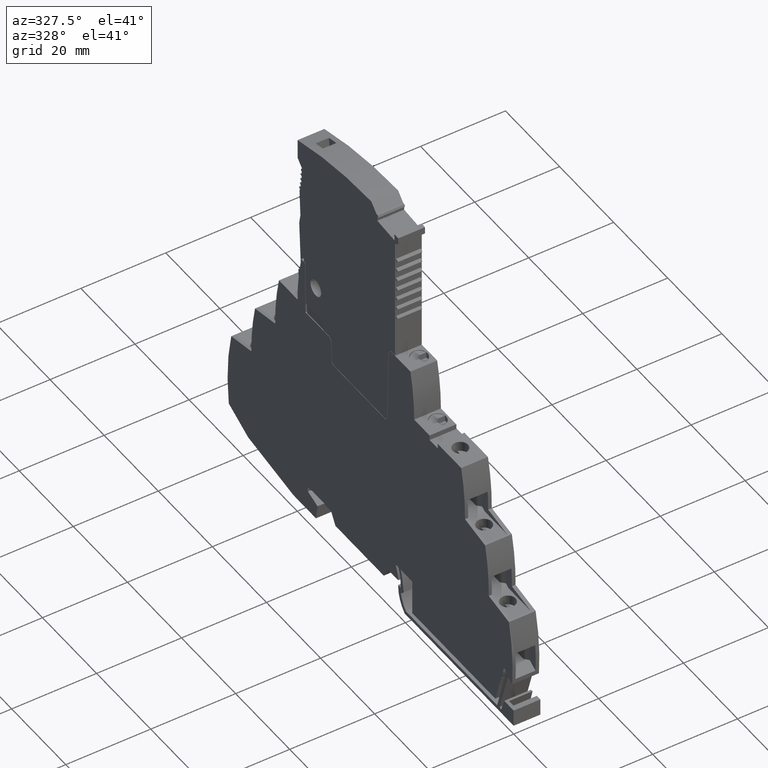
[diagram: clean part render]
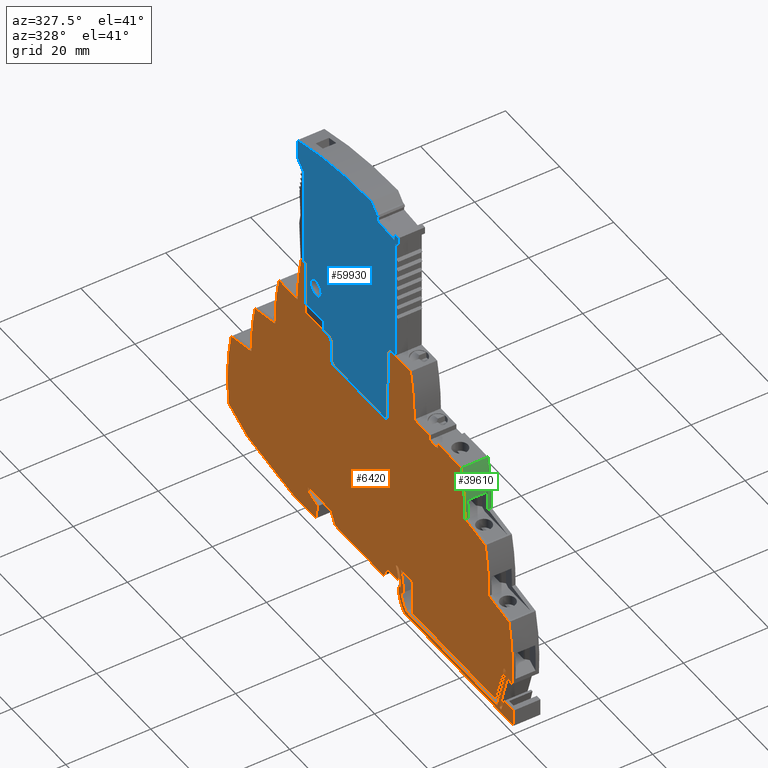
[diagram: same view with three faces highlighted in distinct colors, each labeled with its STEP entity id]
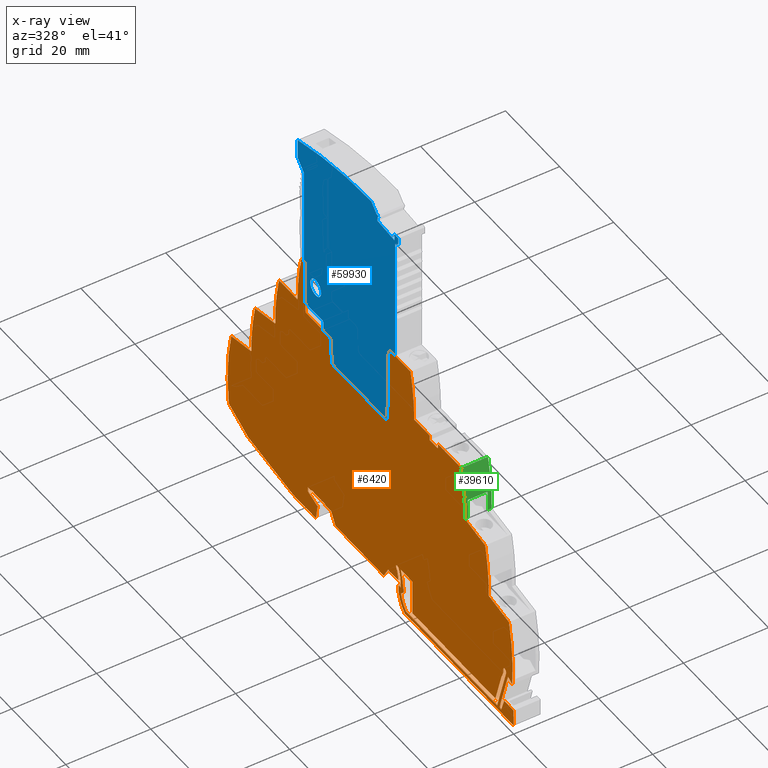
[diagram: x-ray of the same camera — body ghosted, the three highlighted faces saturated]
A machine part, auxiliary view with three faces highlighted in distinct colors.
The next image is the same camera in x-ray (body ghosted, the three faces saturated) — at least one of them is partly hidden behind the body in this view.
Their STEP definitions:

[orange] entity #6420 — the highlighted planar face has unit normal (-1, 0, 0).
#10=CARTESIAN_POINT('',(-55.9378215936621,-6.54999889871898,
-7.22808124464791E-9));
#20=DIRECTION('',(4.25831746991807E-18,1.10352358519E-9,-1.));
#30=DIRECTION('',(0.207911690818067,-0.97814760073374,
-1.07940894632134E-9));
#40=AXIS2_PLACEMENT_3D('',#10,#20,#30);
#50=PLANE('',#40);
#60=CARTESIAN_POINT('',(-70.7789796529141,0.,-3.04014135309915E-15));
#70=DIRECTION('',(0.292371848286536,-0.956304712071166,
-1.05530484351135E-9));
#80=VECTOR('',#70,1.);
#90=LINE('',#60,#80);
#100=CARTESIAN_POINT('',(-71.5838813602363,2.63271344343671,
2.90525844541479E-9));
#110=VERTEX_POINT('',#100);
#120=CARTESIAN_POINT('',(-69.3038181375094,-4.82503331464723,
-5.32454129952403E-9));
#130=VERTEX_POINT('',#120);
#140=EDGE_CURVE('',#110,#130,#90,.T.);
#150=ORIENTED_EDGE('',*,*,#140,.F.);
#160=CARTESIAN_POINT('',(0.,-4.82502979804794,-5.32453692013243E-9));
#170=DIRECTION('',(0.999999999999999,5.07417828865542E-8,
6.02530765892814E-17));
#180=VECTOR('',#170,1.);
#190=LINE('',#160,#180);
#200=CARTESIAN_POINT('',(-38.6044124408871,-4.82503175690464,
-5.32453924616684E-9));
#210=VERTEX_POINT('',#200);
#220=EDGE_CURVE('',#130,#210,#190,.T.);
#230=ORIENTED_EDGE('',*,*,#220,.F.);
#240=CARTESIAN_POINT('',(-38.6044126857179,0.,-2.90313183249569E-15));
#250=DIRECTION('',(-5.07417828587986E-8,0.999999999999999,
1.10352358519E-9));
#260=VECTOR('',#250,1.);
#270=LINE('',#240,#260);
#280=CARTESIAN_POINT('',(-38.6044128605219,3.44497207401861,
3.80160503086861E-9));
#290=VERTEX_POINT('',#280);
#300=EDGE_CURVE('',#210,#290,#270,.T.);
#310=ORIENTED_EDGE('',*,*,#300,.F.);
#320=CARTESIAN_POINT('',(0.,3.44497594927683,3.8016094716973E-9));
#330=DIRECTION('',(0.999999999999995,1.00383815315741E-7,
1.15034214460182E-16));
#340=VECTOR('',#330,1.);
#350=LINE('',#320,#340);
#360=CARTESIAN_POINT('',(-35.1751515428834,3.44497241826091,
3.80160542535138E-9));
#370=VERTEX_POINT('',#360);
#380=EDGE_CURVE('',#290,#370,#350,.T.);
#390=ORIENTED_EDGE('',*,*,#380,.F.);
#400=CARTESIAN_POINT('',(-35.0441483033822,3.29384945097829,
3.63483766724859E-9));
#410=DIRECTION('',(-1.27233392943768E-9,0.,1.));
#420=DIRECTION('',(-0.999999999999995,9.92840029829126E-8,
-1.27233392943767E-9));
#430=AXIS2_PLACEMENT_3D('',#400,#410,#420);
#440=CIRCLE('',#430,0.2);
#450=CARTESIAN_POINT('',(-35.0441483234594,3.49384945097829,
3.85554238428696E-9));
#460=VERTEX_POINT('',#450);
#470=EDGE_CURVE('',#460,#370,#440,.T.);
#480=ORIENTED_EDGE('',*,*,#470,.T.);
#490=CARTESIAN_POINT('',(0.,3.49385296884361,3.85554641556304E-9));
#500=DIRECTION('',(0.999999999999995,1.00383815482275E-7,
1.15034214460182E-16));
#510=VECTOR('',#500,1.);
#520=LINE('',#490,#510);
#530=CARTESIAN_POINT('',(-34.3420132462628,3.49384952146129,
3.85554246505652E-9));
#540=VERTEX_POINT('',#530);
#550=EDGE_CURVE('',#460,#540,#520,.T.);
#560=ORIENTED_EDGE('',*,*,#550,.F.);
#570=CARTESIAN_POINT('',(-5.80807247377794,-5.099998510261,
-5.62797140398149E-9));
#580=DIRECTION('',(-1.27233392943768E-9,0.,1.));
#590=DIRECTION('',(-0.999999999999995,9.92840029829126E-8,
-1.27233392943767E-9));
#600=AXIS2_PLACEMENT_3D('',#570,#580,#590);
#610=CIRCLE('',#600,29.8);
#620=CARTESIAN_POINT('',(-35.4168709723662,-1.72967931617702,
-1.90874398773151E-9));
#630=VERTEX_POINT('',#620);
#640=EDGE_CURVE('',#540,#630,#610,.T.);
#650=ORIENTED_EDGE('',*,*,#640,.F.);
#660=CARTESIAN_POINT('',(0.,-37.1465466943133,-4.09920931242784E-8));
#670=DIRECTION('',(0.707106817066403,-0.707106745306691,
-7.80308984094091E-10));
#680=VECTOR('',#670,1.);
#690=LINE('',#660,#680);
#700=CARTESIAN_POINT('',(-34.35225548262,-2.79429469788224,
-3.08357219077607E-9));
#710=VERTEX_POINT('',#700);
#720=EDGE_CURVE('',#630,#710,#690,.T.);
#730=ORIENTED_EDGE('',*,*,#720,.F.);
#740=CARTESIAN_POINT('',(-42.5080727122643,-0.400000372484449,
-4.41412764876227E-10));
#750=DIRECTION('',(-1.27233392943768E-9,0.,1.));
#760=DIRECTION('',(-0.999999999999995,9.92840029829126E-8,
-1.27233392943767E-9));
#770=AXIS2_PLACEMENT_3D('',#740,#750,#760);
#780=CIRCLE('',#770,8.5);
#790=CARTESIAN_POINT('',(-36.2025221235264,-6.10000315957713,
-6.73150024923088E-9));
#800=VERTEX_POINT('',#790);
#810=EDGE_CURVE('',#800,#710,#780,.T.);
#820=ORIENTED_EDGE('',*,*,#810,.T.);
#830=CARTESIAN_POINT('',(0.,-6.10000132259661,-6.73149806791754E-9));
#840=DIRECTION('',(-0.999999999999999,-5.07417829143097E-8,
-6.02530765892814E-17));
#850=VECTOR('',#840,1.);
#860=LINE('',#830,#850);
#870=CARTESIAN_POINT('',(-69.9597118122115,-6.10000487247712,
-6.73150228320541E-9));
#880=VERTEX_POINT('',#870);
#890=EDGE_CURVE('',#800,#880,#860,.T.);
#900=ORIENTED_EDGE('',*,*,#890,.F.);
#910=CARTESIAN_POINT('',(-71.8246714619477,0.,-3.04459424079771E-15));
#920=DIRECTION('',(-0.292371848547817,0.956304711991284,
1.05530481575578E-9));
#930=VECTOR('',#920,1.);
#940=LINE('',#910,#930);
#950=CARTESIAN_POINT('',(-73.2832766618968,4.77088007130135,
4.86243076617784E-9));
#960=VERTEX_POINT('',#950);
#970=EDGE_CURVE('',#880,#960,#940,.T.);
#980=ORIENTED_EDGE('',*,*,#970,.F.);
#990=CARTESIAN_POINT('',(-72.8529395415008,4.90244740314792,
5.40996328555426E-9));
#1000=DIRECTION('',(-1.27233392943768E-9,0.,1.));
#1010=DIRECTION('',(-0.999999999999995,9.92840029829126E-8,
-1.27233392943767E-9));
#1020=AXIS2_PLACEMENT_3D('',#990,#1000,#1010);
#1030=CIRCLE('',#1020,0.45);
#1040=CARTESIAN_POINT('',(-73.2033944620038,5.18472625232936,
4.9619915880387E-9));
#1050=VERTEX_POINT('',#1040);
#1060=EDGE_CURVE('',#1050,#960,#1030,.T.);
#1070=ORIENTED_EDGE('',*,*,#1060,.T.);
#1080=CARTESIAN_POINT('',(-72.7212095290604,5.05244741637147,
5.57549183848621E-9));
#1090=DIRECTION('',(-1.27233392943768E-9,0.,1.));
#1100=DIRECTION('',(-0.999999999999995,9.92840029829126E-8,
-1.27233392943767E-9));
#1110=AXIS2_PLACEMENT_3D('',#1080,#1090,#1100);
#1120=CIRCLE('',#1110,0.5);
#1130=CARTESIAN_POINT('',(-72.2212095290604,5.0524474665635,
5.57549189600346E-9));
#1140=VERTEX_POINT('',#1130);
#1150=EDGE_CURVE('',#1140,#1050,#1120,.T.);
#1160=ORIENTED_EDGE('',*,*,#1150,.T.);
#1170=CARTESIAN_POINT('',(-72.2212090218766,0.,-3.04628282361663E-15));
#1180=DIRECTION('',(1.00383786616476E-7,-0.999999999999995,
-1.10352358518999E-9));
#1190=VECTOR('',#1180,1.);
#1200=LINE('',#1170,#1190);
#1210=CARTESIAN_POINT('',(-72.2212094439175,4.20427326492571,
4.63951166014647E-9));
#1220=VERTEX_POINT('',#1210);
#1230=EDGE_CURVE('',#1140,#1220,#1200,.T.);
#1240=ORIENTED_EDGE('',*,*,#1230,.F.);
#1250=CARTESIAN_POINT('',(-70.9358334221053,0.,-3.04080928624472E-15));
#1260=DIRECTION('',(0.292371848563715,-0.956304711986423,
-1.05530481575578E-9));
#1270=VECTOR('',#1260,1.);
#1280=LINE('',#1250,#1270);
#1290=CARTESIAN_POINT('',(-71.9172873502453,3.21018942380584,
3.5425167844154E-9));
#1300=VERTEX_POINT('',#1290);
#1310=EDGE_CURVE('',#1220,#1300,#1280,.T.);
#1320=ORIENTED_EDGE('',*,*,#1310,.F.);
#1330=CARTESIAN_POINT('',(-70.0638831925934,0.,-3.03709624534949E-15));
#1340=DIRECTION('',(0.500000086934894,-0.866025353592549,
-9.55679424485822E-10));
#1350=VECTOR('',#1340,1.);
#1360=LINE('',#1330,#1350);
#1370=EDGE_CURVE('',#1300,#110,#1360,.T.);
#1380=ORIENTED_EDGE('',*,*,#1370,.F.);
#1390=EDGE_LOOP('',(#1380,#1320,#1240,#1160,#1070,#980,#900,#820,#730,
#650,#560,#480,#390,#310,#230,#150));
#1400=FACE_BOUND('',#1390,.T.);
#1410=CARTESIAN_POINT('',(0.,46.5999999451111,5.14241962705408E-8));
#1420=DIRECTION('',(1.,-2.77555756156289E-16,4.25831716362875E-18));
#1430=VECTOR('',#1420,1.);
#1440=LINE('',#1410,#1430);
#1450=CARTESIAN_POINT('',(-56.6854746019642,46.5999999451111,
5.14241960291561E-8));
#1460=VERTEX_POINT('',#1450);
#1470=CARTESIAN_POINT('',(-48.0204363833333,46.5999999451111,
5.14241960660546E-8));
#1480=VERTEX_POINT('',#1470);
#1490=EDGE_CURVE('',#1460,#1480,#1440,.T.);
#1500=ORIENTED_EDGE('',*,*,#1490,.T.);
#1510=CARTESIAN_POINT('',(-8.09086787919981,34.8286704729738,
3.8434255777986E-8));
#1520=DIRECTION('',(1.27233440234888E-9,1.65759239937384E-24,-1.));
#1530=DIRECTION('',(-0.999966514571986,-0.00818350381889616,
-1.27229179768684E-9));
#1540=AXIS2_PLACEMENT_3D('',#1510,#1520,#1530);
#1550=CIRCLE('',#1540,50.);
#1560=CARTESIAN_POINT('',(-58.0865325768243,34.1702546144893,
3.77076786875727E-8));
#1570=VERTEX_POINT('',#1560);
#1580=EDGE_CURVE('',#1570,#1460,#1550,.T.);
#1590=ORIENTED_EDGE('',*,*,#1580,.T.);
#1600=CARTESIAN_POINT('',(-65.2131141587113,32.784987483507,
3.61790039117688E-8));
#1610=DIRECTION('',(0.981627183447664,0.190808995376543,
2.10562230844505E-10));
#1620=VECTOR('',#1610,1.);
#1630=LINE('',#1600,#1620);
#1640=CARTESIAN_POINT('',(-65.5220769793142,32.7249311949261,
3.61127301479053E-8));
#1650=VERTEX_POINT('',#1640);
#1660=EDGE_CURVE('',#1650,#1570,#1630,.T.);
#1670=ORIENTED_EDGE('',*,*,#1660,.T.);
#1680=CARTESIAN_POINT('',(-16.8920120075957,21.1009567951588,
2.32854011628092E-8));
#1690=DIRECTION('',(1.27233440234888E-9,1.65436122510606E-24,-1.));
#1700=DIRECTION('',(-0.999962666925382,-0.00864087700855855,
-1.2722869021937E-9));
#1710=AXIS2_PLACEMENT_3D('',#1680,#1690,#1700);
#1720=CIRCLE('',#1710,50.);
#1730=CARTESIAN_POINT('',(-66.8873687393856,20.4195573080187,
2.25334598284808E-8));
#1740=VERTEX_POINT('',#1730);
#1750=EDGE_CURVE('',#1740,#1650,#1720,.T.);
#1760=ORIENTED_EDGE('',*,*,#1750,.T.);
#1770=CARTESIAN_POINT('',(-74.0010705903682,19.0367937431111,
2.10075478280585E-8));
#1780=DIRECTION('',(0.981627183447664,0.190808995376547,
2.1056223084451E-10));
#1790=VECTOR('',#1780,1.);
#1800=LINE('',#1770,#1790);
#1810=CARTESIAN_POINT('',(-74.3182413511833,18.9751419925744,
2.09395134031628E-8));
#1820=VERTEX_POINT('',#1810);
#1830=EDGE_CURVE('',#1820,#1740,#1800,.T.);
#1840=ORIENTED_EDGE('',*,*,#1830,.T.);
#1850=CARTESIAN_POINT('',(-25.6882268660181,7.35095639014525,
-5.25671852713572E-8));
#1860=DIRECTION('',(-1.22225199816632E-9,1.09132836497945E-9,-1.));
#1870=DIRECTION('',(-0.997471411211158,-0.0710688667168697,
1.14160195535155E-9));
#1880=AXIS2_PLACEMENT_3D('',#1850,#1860,#1870);
#1890=CIRCLE('',#1880,50.);
#1900=CARTESIAN_POINT('',(-75.5385735993277,3.48534769696271,
6.48229886001244E-8));
#1910=VERTEX_POINT('',#1900);
#1920=EDGE_CURVE('',#1910,#1820,#1890,.T.);
#1930=ORIENTED_EDGE('',*,*,#1920,.T.);
#1940=CARTESIAN_POINT('',(-73.9893516880467,4.34409543349546,
4.79380871336628E-9));
#1950=DIRECTION('',(-0.874619707139433,-0.484809620246271,
-5.34998853993175E-10));
#1960=VECTOR('',#1950,1.);
#1970=LINE('',#1940,#1960);
#1980=CARTESIAN_POINT('',(-73.9893516887666,4.34409543309642,
4.79380898505658E-9));
#1990=VERTEX_POINT('',#1980);
#2000=EDGE_CURVE('',#1990,#1910,#1970,.T.);
#2010=ORIENTED_EDGE('',*,*,#2000,.T.);
#2020=CARTESIAN_POINT('',(-70.9315831518063,-5.65741300096278,
-6.24309171851416E-9));
#2030=DIRECTION('',(-0.292371752550295,0.956304741340682,
1.05530483545345E-9));
#2040=VECTOR('',#2030,1.);
#2050=LINE('',#2020,#2040);
#2060=CARTESIAN_POINT('',(-70.9315831518064,-5.6574130009622,
-6.24499134361604E-9));
#2070=VERTEX_POINT('',#2060);
#2080=EDGE_CURVE('',#2070,#1990,#2050,.T.);
#2090=ORIENTED_EDGE('',*,*,#2080,.T.);
#2100=CARTESIAN_POINT('',(-71.2662898112759,-5.75974311435417,
-6.38322801560509E-9));
#2110=DIRECTION('',(-1.59408267284635E-10,-5.63558998179242E-10,1.));
#2120=DIRECTION('',(0.999999999999995,-9.92840045098233E-8,
1.5940821133224E-10));
#2130=AXIS2_PLACEMENT_3D('',#2100,#2110,#2120);
#2140=CIRCLE('',#2130,0.35);
#2150=CARTESIAN_POINT('',(-71.4835609937704,-6.03341428393828,
-6.65801813513198E-9));
#2160=VERTEX_POINT('',#2150);
#2170=EDGE_CURVE('',#2160,#2070,#2140,.T.);
#2180=ORIENTED_EDGE('',*,*,#2170,.T.);
#2190=CARTESIAN_POINT('',(-72.5361901427622,-3.14133901931759,
-3.46654474451869E-9));
#2200=DIRECTION('',(0.342020096677417,-0.939692637764482,
-1.03697298714608E-9));
#2210=VECTOR('',#2200,1.);
#2220=LINE('',#2190,#2210);
#2230=CARTESIAN_POINT('',(-72.5840871527449,-3.00974304560474,
-3.32132554908501E-9));
#2240=VERTEX_POINT('',#2230);
#2250=EDGE_CURVE('',#2240,#2160,#2220,.T.);
#2260=ORIENTED_EDGE('',*,*,#2250,.T.);
#2270=CARTESIAN_POINT('',(-75.181453076423,-3.00974291666622,
-3.3213253527882E-9));
#2280=DIRECTION('',(0.999999999999999,-4.96420311116345E-8,
-5.05228339886622E-17));
#2290=VECTOR('',#2280,1.);
#2300=LINE('',#2270,#2290);
#2310=CARTESIAN_POINT('',(-76.0814530764858,-3.0097428719884,
-3.32132530731766E-9));
#2320=VERTEX_POINT('',#2310);
#2330=EDGE_CURVE('',#2320,#2240,#2300,.T.);
#2340=ORIENTED_EDGE('',*,*,#2330,.T.);
#2350=CARTESIAN_POINT('',(-76.0814532249277,-5.99999794856876,
-6.62114231005821E-9));
#2360=DIRECTION('',(4.96420237284897E-8,0.999999999999999,
1.10352358519E-9));
#2370=VECTOR('',#2360,1.);
#2380=LINE('',#2350,#2370);
#2390=CARTESIAN_POINT('',(-76.0814532745701,-6.99999789892485,
-7.724665840465E-9));
#2400=VERTEX_POINT('',#2390);
#2410=EDGE_CURVE('',#2400,#2320,#2380,.T.);
#2420=ORIENTED_EDGE('',*,*,#2410,.T.);
#2430=CARTESIAN_POINT('',(-36.6028890050387,-6.9999998587209,
-7.72466783503389E-9));
#2440=DIRECTION('',(-0.999999999999999,4.9642030929163E-8,
5.05228344487795E-17));
#2450=VECTOR('',#2440,1.);
#2460=LINE('',#2430,#2450);
#2470=CARTESIAN_POINT('',(-35.7706957610773,-6.99999990003275,
-7.72466787707872E-9));
#2480=VERTEX_POINT('',#2470);
#2490=EDGE_CURVE('',#2480,#2400,#2460,.T.);
#2500=ORIENTED_EDGE('',*,*,#2490,.T.);
#2510=CARTESIAN_POINT('',(-40.4080782294094,-1.75646255941947,
-1.938300771635E-9));
#2520=DIRECTION('',(4.25831754424883E-18,1.10352358519E-9,-1.));
#2530=DIRECTION('',(1.,-2.10974095336626E-13,4.25808472935876E-18));
#2540=AXIS2_PLACEMENT_3D('',#2510,#2520,#2530);
#2550=CIRCLE('',#2540,7.);
#2560=CARTESIAN_POINT('',(-33.4080782294094,-1.75646273316727,
-1.93830093356156E-9));
#2570=VERTEX_POINT('',#2560);
#2580=EDGE_CURVE('',#2570,#2480,#2550,.T.);
#2590=ORIENTED_EDGE('',*,*,#2580,.T.);
#2600=CARTESIAN_POINT('',(-33.4080782099117,-1.36369317799606,
-1.50487046588554E-9));
#2610=DIRECTION('',(-4.96420269271973E-8,-0.999999999999999,
-1.10352358519E-9));
#2620=VECTOR('',#2610,1.);
#2630=LINE('',#2600,#2620);
#2640=CARTESIAN_POINT('',(-33.4080782017855,-1.19999691028249,
-1.32422788924954E-9));
#2650=VERTEX_POINT('',#2640);
#2660=EDGE_CURVE('',#2650,#2570,#2630,.T.);
#2670=ORIENTED_EDGE('',*,*,#2660,.T.);
#2680=CARTESIAN_POINT('',(-34.0906470562003,-1.25971391297619,
-1.39012689747199E-9));
#2690=DIRECTION('',(0.996194702418332,0.0871556932945355,
9.6178367376217E-11));
#2700=VECTOR('',#2690,1.);
#2710=LINE('',#2680,#2700);
#2720=CARTESIAN_POINT('',(-34.3080782056942,-1.27873666277798,
-1.41111895145933E-9));
#2730=VERTEX_POINT('',#2720);
#2740=EDGE_CURVE('',#2730,#2650,#2710,.T.);
#2750=ORIENTED_EDGE('',*,*,#2740,.T.);
#2760=CARTESIAN_POINT('',(-34.3080781521434,-0.199997277642924,
-2.20704597689436E-10));
#2770=DIRECTION('',(-4.96420400338568E-8,-0.999999999999999,
-1.10352358519E-9));
#2780=VECTOR('',#2770,1.);
#2790=LINE('',#2760,#2780);
#2800=CARTESIAN_POINT('',(-34.3080781521433,-0.199997071626794,
-2.20704370345778E-10));
#2810=VERTEX_POINT('',#2800);
#2820=EDGE_CURVE('',#2810,#2730,#2790,.T.);
#2830=ORIENTED_EDGE('',*,*,#2820,.T.);
#2840=CARTESIAN_POINT('',(-26.0080781521432,-0.199997277639503,
-2.20704562341639E-10));
#2850=DIRECTION('',(-4.25831741821928E-18,-1.10352358519E-9,1.));
#2860=DIRECTION('',(-0.914578876259813,0.404407565581232,
4.46273282753593E-10));
#2870=AXIS2_PLACEMENT_3D('',#2840,#2850,#2860);
#2880=CIRCLE('',#2870,8.3);
#2890=CARTESIAN_POINT('',(-33.5990828250997,3.15658551668467,
3.48336368451314E-9));
#2900=VERTEX_POINT('',#2890);
#2910=EDGE_CURVE('',#2900,#2810,#2880,.T.);
#2920=ORIENTED_EDGE('',*,*,#2910,.T.);
#2930=CARTESIAN_POINT('',(-33.1417933869698,2.954381733894,
3.26022704313626E-9));
#2940=DIRECTION('',(-4.25831762501444E-18,-1.10352358519E-9,1.));
#2950=DIRECTION('',(-0.684136732920125,0.729353776071241,
8.04859090928729E-10));
#2960=AXIS2_PLACEMENT_3D('',#2930,#2940,#2950);
#2970=CIRCLE('',#2960,0.5);
#2980=CARTESIAN_POINT('',(-33.4838617534301,3.31905862192942,
3.66265658860043E-9));
#2990=VERTEX_POINT('',#2980);
#3000=EDGE_CURVE('',#2990,#2900,#2970,.T.);
#3010=ORIENTED_EDGE('',*,*,#3000,.T.);
#3020=CARTESIAN_POINT('',(-33.0391728770314,2.8449786674839,
3.13949817949761E-9));
#3030=DIRECTION('',(-4.25831757331565E-18,-1.10352358519E-9,1.));
#3040=DIRECTION('',(0.456722321471031,0.889609308106717,
9.81704855045189E-10));
#3050=AXIS2_PLACEMENT_3D('',#3020,#3030,#3040);
#3060=CIRCLE('',#3050,0.65);
#3070=CARTESIAN_POINT('',(-32.507005311546,3.21820471459918,
3.55136192736271E-9));
#3080=VERTEX_POINT('',#3070);
#3090=EDGE_CURVE('',#3080,#2990,#3060,.T.);
#3100=ORIENTED_EDGE('',*,*,#3090,.T.);
#3110=CARTESIAN_POINT('',(-26.1107379947127,-0.299999999684892,
-3.31059925139085E-10));
#3120=DIRECTION('',(4.25831752161686E-18,1.10352358519E-9,-1.));
#3130=DIRECTION('',(-0.99305547153729,0.117647058823628,
1.29826299911363E-10));
#3140=AXIS2_PLACEMENT_3D('',#3110,#3120,#3130);
#3150=CIRCLE('',#3140,7.3);
#3160=CARTESIAN_POINT('',(-33.4045710062369,3.15006687401365E-10,
-2.88064163852211E-15));
#3170=VERTEX_POINT('',#3160);
#3180=EDGE_CURVE('',#3170,#3080,#3150,.T.);
#3190=ORIENTED_EDGE('',*,*,#3180,.T.);
#3200=CARTESIAN_POINT('',(-30.1827208324599,3.15004911044525E-10,
-2.86692197880663E-15));
#3210=DIRECTION('',(-1.,3.31311655257135E-16,-4.2583170272585E-18));
#3220=VECTOR('',#3210,1.);
#3230=LINE('',#3200,#3220);
#3240=CARTESIAN_POINT('',(-29.6053705632703,3.15006687401365E-10,
-2.8644634369041E-15));
#3250=VERTEX_POINT('',#3240);
#3260=EDGE_CURVE('',#3250,#3170,#3230,.T.);
#3270=ORIENTED_EDGE('',*,*,#3260,.T.);
#3280=CARTESIAN_POINT('',(-28.5657215270858,-1.80072495239665,
-1.98714531579374E-9));
#3290=DIRECTION('',(-0.499999999999997,0.866025403784441,
9.55679456320664E-10));
#3300=VECTOR('',#3290,1.);
#3310=LINE('',#3280,#3300);
#3320=CARTESIAN_POINT('',(-28.0461062848083,-2.7007249524084,
-2.98031661410027E-9));
#3330=VERTEX_POINT('',#3320);
#3340=EDGE_CURVE('',#3330,#3250,#3310,.T.);
#3350=ORIENTED_EDGE('',*,*,#3340,.T.);
#3360=CARTESIAN_POINT('',(-11.2064812670019,-2.70072495240836,
-2.98031646855651E-9));
#3370=DIRECTION('',(-1.,0.,-4.25831746647437E-18));
#3380=VECTOR('',#3370,1.);
#3390=LINE('',#3360,#3380);
#3400=CARTESIAN_POINT('',(-10.1672507824607,-2.70072495240839,
-2.98031643813018E-9));
#3410=VERTEX_POINT('',#3400);
#3420=EDGE_CURVE('',#3410,#3330,#3390,.T.);
#3430=ORIENTED_EDGE('',*,*,#3420,.T.);
#3440=CARTESIAN_POINT('',(-8.89666163859347,-0.49999999968484,
-5.51764568874008E-10));
#3450=DIRECTION('',(-0.499999999999997,-0.86602540378444,
-9.55679460578982E-10));
#3460=VECTOR('',#3450,1.);
#3470=LINE('',#3440,#3460);
#3480=CARTESIAN_POINT('',(-8.60798650399875,3.15005902284499E-10,
-2.77504991041136E-15));
#3490=VERTEX_POINT('',#3480);
#3500=EDGE_CURVE('',#3490,#3410,#3470,.T.);
#3510=ORIENTED_EDGE('',*,*,#3500,.T.);
#3520=CARTESIAN_POINT('',(-6.49999999977454,3.15002246509266E-10,
-2.76607343456852E-15));
#3530=DIRECTION('',(-1.,2.32106989073093E-15,-4.25831642370968E-18));
#3540=VECTOR('',#3530,1.);
#3550=LINE('',#3520,#3540);
#3560=CARTESIAN_POINT('',(-6.49999999977461,3.15028003683443E-10,
-2.7660734102499E-15));
#3570=VERTEX_POINT('',#3560);
#3580=EDGE_CURVE('',#3570,#3490,#3550,.T.);
#3590=ORIENTED_EDGE('',*,*,#3580,.T.);
#3600=CARTESIAN_POINT('',(-6.29999999784786,0.200000002241693,
2.20701953942378E-10));
#3610=DIRECTION('',(-0.707106781186544,-0.707106781186551,
-7.80309013298227E-10));
#3620=VECTOR('',#3610,1.);
#3630=LINE('',#3600,#3620);
#3640=CARTESIAN_POINT('',(-6.29999999784792,0.200000002241719,
2.20701961383149E-10));
#3650=VERTEX_POINT('',#3640);
#3660=EDGE_CURVE('',#3650,#3570,#3630,.T.);
#3670=ORIENTED_EDGE('',*,*,#3660,.T.);
#3680=CARTESIAN_POINT('',(-1.49999999784787,0.200000002241697,
2.20701974382303E-10));
#3690=DIRECTION('',(-1.,-7.40148683083439E-16,-4.25831786627546E-18));
#3700=VECTOR('',#3690,1.);
#3710=LINE('',#3680,#3700);
#3720=CARTESIAN_POINT('',(-1.49999999784786,0.200000002241701,
2.20702004639121E-10));
#3730=VERTEX_POINT('',#3720);
#3740=EDGE_CURVE('',#3730,#3650,#3710,.T.);
#3750=ORIENTED_EDGE('',*,*,#3740,.T.);
#3760=CARTESIAN_POINT('',(-0.999999997847844,2.24169482976322E-9,
-2.74052654037625E-15));
#3770=DIRECTION('',(-0.928476690885264,0.371390676354093,
4.0983836672266E-10));
#3780=VECTOR('',#3770,1.);
#3790=LINE('',#3760,#3780);
#3800=CARTESIAN_POINT('',(-0.999999997847868,2.24170593199347E-9,
-2.72035531938043E-15));
#3810=VERTEX_POINT('',#3800);
#3820=EDGE_CURVE('',#3810,#3730,#3790,.T.);
#3830=ORIENTED_EDGE('',*,*,#3820,.T.);
#3840=CARTESIAN_POINT('',(2.14729567460381E-9,2.24169305340638E-9,
-2.73626822368181E-15));
#3850=DIRECTION('',(-1.,1.77635683940888E-15,-4.25831669445694E-18));
#3860=VECTOR('',#3850,1.);
#3870=LINE('',#3840,#3860);
#3880=CARTESIAN_POINT('',(2.14729567460381E-9,2.24171259333161E-9,
-2.73626820481307E-15));
#3890=VERTEX_POINT('',#3880);
#3900=EDGE_CURVE('',#3890,#3810,#3870,.T.);
#3910=ORIENTED_EDGE('',*,*,#3900,.T.);
#3920=CARTESIAN_POINT('',(2.14728856917645E-9,-1.10100664143248,
-1.21498953501356E-9));
#3930=DIRECTION('',(6.45357355327977E-15,1.,1.10352358519E-9));
#3940=VECTOR('',#3930,1.);
#3950=LINE('',#3920,#3940);
#3960=CARTESIAN_POINT('',(2.14730278003117E-9,-1.10100664143248,
-1.21498953501356E-9));
#3970=VERTEX_POINT('',#3960);
#3980=EDGE_CURVE('',#3970,#3890,#3950,.T.);
#3990=ORIENTED_EDGE('',*,*,#3980,.T.);
#4000=CARTESIAN_POINT('',(0.,-1.10100664221403,-1.21498953587602E-9));
#4010=DIRECTION('',(0.939692620785943,0.342020143325573,
3.77427283870801E-10));
#4020=VECTOR('',#4010,1.);
#4030=LINE('',#4000,#4020);
#4040=CARTESIAN_POINT('',(-3.57389051741175,-2.40179641107773,
-2.65044173711996E-9));
#4050=VERTEX_POINT('',#4040);
#4060=EDGE_CURVE('',#4050,#3970,#4030,.T.);
#4070=ORIENTED_EDGE('',*,*,#4060,.T.);
#4080=CARTESIAN_POINT('',(-3.96952772024424,0.,-2.75564549677861E-15));
#4090=DIRECTION('',(-0.162535140972111,0.986702755620545,
1.08884976035561E-9));
#4100=VECTOR('',#4090,1.);
#4110=LINE('',#4080,#4100);
#4120=CARTESIAN_POINT('',(-2.98117450052271,-5.99999999749596,
-6.62114425159526E-9));
#4130=VERTEX_POINT('',#4120);
#4140=EDGE_CURVE('',#4130,#4050,#4110,.T.);
#4150=ORIENTED_EDGE('',*,*,#4140,.T.);
#4160=CARTESIAN_POINT('',(5.19999995089936,-5.99999999749596,
-6.62114422497547E-9));
#4170=DIRECTION('',(-1.,-4.58012858114727E-16,-4.25831776980446E-18));
#4180=VECTOR('',#4170,1.);
#4190=LINE('',#4160,#4180);
#4200=CARTESIAN_POINT('',(5.37497732927698,-5.99999999749596,
-6.62114419707063E-9));
#4210=VERTEX_POINT('',#4200);
#4220=EDGE_CURVE('',#4210,#4130,#4190,.T.);
#4230=ORIENTED_EDGE('',*,*,#4220,.T.);
#4240=CARTESIAN_POINT('',(21.9456653603078,-3.0781406087224,
-3.39680340554664E-9));
#4250=DIRECTION('',(-0.984807753012208,-0.17364817766693,
-1.91624863774345E-10));
#4260=VECTOR('',#4250,1.);
#4270=LINE('',#4240,#4260);
#4280=CARTESIAN_POINT('',(22.0928458790932,-3.05218871222587,
-3.36816476342054E-9));
#4290=VERTEX_POINT('',#4280);
#4300=EDGE_CURVE('',#4290,#4210,#4270,.T.);
#4310=ORIENTED_EDGE('',*,*,#4300,.T.);
#4320=CARTESIAN_POINT('',(28.8603756429945,0.396039820880913,
4.37036667171171E-10));
#4330=DIRECTION('',(-0.891006530106836,-0.4539904881239,
-5.00989214890833E-10));
#4340=VECTOR('',#4330,1.);
#4350=LINE('',#4320,#4340);
#4360=CARTESIAN_POINT('',(29.2351400995934,0.586991843611994,
6.4775672949052E-10));
#4370=VERTEX_POINT('',#4360);
#4380=EDGE_CURVE('',#4370,#4290,#4350,.T.);
#4390=ORIENTED_EDGE('',*,*,#4380,.T.);
#4400=CARTESIAN_POINT('',(-20.3052351230874,7.3509568639236,
8.11195144784585E-9));
#4410=DIRECTION('',(4.25831752161686E-18,1.10352358519E-9,-1.));
#4420=DIRECTION('',(0.974090670046324,0.22615783543513,
2.49570509526172E-10));
#4430=AXIS2_PLACEMENT_3D('',#4400,#4410,#4420);
#4440=CIRCLE('',#4430,50.);
#4450=CARTESIAN_POINT('',(28.3248298487097,18.9749312586377,
2.09392812117623E-8));
#4460=VERTEX_POINT('',#4450);
#4470=EDGE_CURVE('',#4460,#4370,#4440,.T.);
#4480=ORIENTED_EDGE('',*,*,#4470,.T.);
#4490=CARTESIAN_POINT('',(21.1383955049979,20.3718325879666,
2.24807950856354E-8));
#4500=DIRECTION('',(0.981627183447665,-0.190808995376541,
-2.10562222484343E-10));
#4510=VECTOR('',#4500,1.);
#4520=LINE('',#4490,#4510);
#4530=CARTESIAN_POINT('',(21.1383955049989,20.3718325879661,
2.24807948308699E-8));
#4540=VERTEX_POINT('',#4530);
#4550=EDGE_CURVE('',#4540,#4460,#4520,.T.);
#4560=ORIENTED_EDGE('',*,*,#4550,.T.);
#4570=CARTESIAN_POINT('',(21.195638203612,20.6663207430004,
2.2805769717138E-8));
#4580=DIRECTION('',(-1.27233440234888E-9,-1.64305211516881E-24,1.));
#4590=DIRECTION('',(-0.999962666925369,0.00864087701006138,
-1.27228690219368E-9));
#4600=AXIS2_PLACEMENT_3D('',#4570,#4580,#4590);
#4610=CIRCLE('',#4600,0.3);
#4620=CARTESIAN_POINT('',(20.8956494035344,20.668913006103,
2.24240836464799E-8));
#4630=VERTEX_POINT('',#4620);
#4640=EDGE_CURVE('',#4630,#4540,#4610,.T.);
#4650=ORIENTED_EDGE('',*,*,#4640,.T.);
#4660=CARTESIAN_POINT('',(-29.1024839427348,21.1009568565318,
2.32854002746308E-8));
#4670=DIRECTION('',(1.27233440234888E-9,1.65436122510606E-24,-1.));
#4680=DIRECTION('',(0.97409067002154,0.226157835541877,
1.23936907047548E-9));
#4690=AXIS2_PLACEMENT_3D('',#4660,#4670,#4680);
#4700=CIRCLE('',#4690,50.);
#4710=CARTESIAN_POINT('',(19.5275810289836,32.7249312562991,
3.61127305741091E-8));
#4720=VERTEX_POINT('',#4710);
#4730=EDGE_CURVE('',#4720,#4630,#4700,.T.);
#4740=ORIENTED_EDGE('',*,*,#4730,.T.);
#4750=CARTESIAN_POINT('',(12.3374449132264,34.1225521372225,
3.76550383840952E-8));
#4760=DIRECTION('',(0.981627183447665,-0.190808995376539,
-2.10562222484341E-10));
#4770=VECTOR('',#4760,1.);
#4780=LINE('',#4750,#4770);
#4790=CARTESIAN_POINT('',(12.0920366264937,34.1702546758623,
1.02045460829251E-7));
#4800=VERTEX_POINT('',#4790);
#4810=EDGE_CURVE('',#4800,#4720,#4780,.T.);
#4820=ORIENTED_EDGE('',*,*,#4810,.T.);
#4830=CARTESIAN_POINT('',(-37.9036280711308,34.8286705343468,
3.84342566661644E-8));
#4840=DIRECTION('',(1.27233440234888E-9,1.65436122510606E-24,-1.));
#4850=DIRECTION('',(0.973730485764539,0.227703625559092,
1.23891079565411E-9));
#4860=AXIS2_PLACEMENT_3D('',#4830,#4840,#4850);
#4870=CIRCLE('',#4860,50.);
#4880=CARTESIAN_POINT('',(10.6909786524791,46.5999999995214,
1.00262846569227E-7));
#4890=VERTEX_POINT('',#4880);
#4900=EDGE_CURVE('',#4890,#4800,#4870,.T.);
#4910=ORIENTED_EDGE('',*,*,#4900,.T.);
#4920=CARTESIAN_POINT('',(3.82923846377429,46.6000000069236,
5.14241963550585E-8));
#4930=DIRECTION('',(1.,-1.09875605161213E-15,4.25831663236886E-18));
#4940=VECTOR('',#4930,1.);
#4950=LINE('',#4920,#4940);
#4960=CARTESIAN_POINT('',(3.82923846379258,46.6000000063113,
1.14382431764807E-7));
#4970=VERTEX_POINT('',#4960);
#4980=EDGE_CURVE('',#4970,#4890,#4950,.T.);
#4990=ORIENTED_EDGE('',*,*,#4980,.T.);
#5000=CARTESIAN_POINT('',(-46.1707374788646,46.5509517270129,
5.13700699755759E-8));
#5010=DIRECTION('',(1.26133036133013E-9,-1.10352358517744E-9,-1.));
#5020=DIRECTION('',(0.972428715158313,0.233200330050266,
9.69211798376798E-10));
#5030=AXIS2_PLACEMENT_3D('',#5000,#5010,#5020);
#5040=CIRCLE('',#5030,50.);
#5050=CARTESIAN_POINT('',(2.45069827905102,58.2109682295263,
9.98306598944157E-8));
#5060=VERTEX_POINT('',#5050);
#5070=EDGE_CURVE('',#5060,#4970,#5040,.T.);
#5080=ORIENTED_EDGE('',*,*,#5070,.T.);
#5090=CARTESIAN_POINT('',(1.01456435035116,58.2109681582333,
6.42371735449329E-8));
#5100=DIRECTION('',(0.999999999999999,4.96422082864998E-8,
5.90396688139296E-17));
#5110=VECTOR('',#5100,1.);
#5120=LINE('',#5090,#5110);
#5130=CARTESIAN_POINT('',(1.01456435035141,58.2109681582334,
6.4237173544933E-8));
#5140=VERTEX_POINT('',#5130);
#5150=EDGE_CURVE('',#5140,#5060,#5120,.T.);
#5160=ORIENTED_EDGE('',*,*,#5150,.T.);
#5170=CARTESIAN_POINT('',(0.902751530547924,45.3986338445472,
5.0098460447965E-8));
#5180=DIRECTION('',(0.00872663477859456,0.999961922197761,
1.10348156547432E-9));
#5190=VECTOR('',#5180,1.);
#5200=LINE('',#5170,#5190);
#5210=CARTESIAN_POINT('',(0.90275153054791,45.398633844547,
5.00984604479648E-8));
#5220=VERTEX_POINT('',#5210);
#5230=EDGE_CURVE('',#5220,#5140,#5200,.T.);
#5240=ORIENTED_EDGE('',*,*,#5230,.T.);
#5250=CARTESIAN_POINT('',(-7.64297914195566,45.3986346930015,
5.0098461347864E-8));
#5260=DIRECTION('',(0.999999999999995,-9.92840003687669E-8,
-1.05303919371197E-16));
#5270=VECTOR('',#5260,1.);
#5280=LINE('',#5250,#5270);
#5290=CARTESIAN_POINT('',(-7.64297914195618,45.3986346930014,
5.00984613478638E-8));
#5300=VERTEX_POINT('',#5290);
#5310=EDGE_CURVE('',#5300,#5220,#5280,.T.);
#5320=ORIENTED_EDGE('',*,*,#5310,.T.);
#5330=CARTESIAN_POINT('',(-7.64297924124064,44.3986346930014,
4.97188411200027E-8));
#5340=DIRECTION('',(4.25831959153602E-18,1.2533408571656E-20,-1.));
#5350=DIRECTION('',(-0.999847695156386,0.0174524064375632,
-4.25745229069613E-18));
#5360=AXIS2_PLACEMENT_3D('',#5330,#5340,#5350);
#5370=CIRCLE('',#5360,1.);
#5380=CARTESIAN_POINT('',(-8.64282693639701,44.4160870994388,
4.90141968818941E-8));
#5390=VERTEX_POINT('',#5380);
#5400=EDGE_CURVE('',#5390,#5300,#5370,.T.);
#5410=ORIENTED_EDGE('',*,*,#5400,.T.);
#5420=CARTESIAN_POINT('',(-8.72120890831555,39.9255869356813,
4.40588240601984E-8));
#5430=DIRECTION('',(0.0174524064372862,0.999847695156391,
1.10335551327726E-9));
#5440=VECTOR('',#5430,1.);
#5450=LINE('',#5420,#5440);
#5460=CARTESIAN_POINT('',(-8.72120890831556,39.9255869356814,
4.40588240434394E-8));
#5470=VERTEX_POINT('',#5460);
#5480=EDGE_CURVE('',#5470,#5390,#5450,.T.);
#5490=ORIENTED_EDGE('',*,*,#5480,.T.);
#5500=CARTESIAN_POINT('',(-9.72105660347197,39.9430393421184,
4.29820370524267E-8));
#5510=DIRECTION('',(-4.25831775426141E-18,-1.25334406289905E-20,1.));
#5520=DIRECTION('',(-2.91500157345581E-12,-1.,-1.25334406414035E-20));
#5530=AXIS2_PLACEMENT_3D('',#5500,#5510,#5520);
#5540=CIRCLE('',#5530,1.);
#5550=CARTESIAN_POINT('',(-9.72105660347342,38.9430393421183,
4.29745596128723E-8));
#5560=VERTEX_POINT('',#5550);
#5570=EDGE_CURVE('',#5560,#5470,#5540,.T.);
#5580=ORIENTED_EDGE('',*,*,#5570,.T.);
#5590=CARTESIAN_POINT('',(-28.4302616897223,38.9430393421183,
4.29745595332025E-8));
#5600=DIRECTION('',(1.,3.79782429282578E-16,4.25831749102399E-18));
#5610=VECTOR('',#5600,1.);
#5620=LINE('',#5590,#5610);
#5630=CARTESIAN_POINT('',(-28.4302616897223,38.9430393421183,
4.407808311838E-8));
#5640=VERTEX_POINT('',#5630);
#5650=EDGE_CURVE('',#5640,#5560,#5620,.T.);
#5660=ORIENTED_EDGE('',*,*,#5650,.T.);
#5670=CARTESIAN_POINT('',(-28.4302616897223,39.9430393421183,
4.33503888774602E-8));
#5680=DIRECTION('',(-4.25831872448021E-18,-1.25334660474769E-20,1.));
#5690=DIRECTION('',(-0.999657324975573,-0.0261769483072882,
-4.25718759290011E-18));
#5700=AXIS2_PLACEMENT_3D('',#5670,#5680,#5690);
#5710=CIRCLE('',#5700,1.);
#5720=CARTESIAN_POINT('',(-29.4299190146979,39.9168623938109,
4.40491962050679E-8));
#5730=VERTEX_POINT('',#5720);
#5740=EDGE_CURVE('',#5730,#5640,#5710,.T.);
#5750=ORIENTED_EDGE('',*,*,#5740,.T.);
#5760=CARTESIAN_POINT('',(-29.883466541704,57.2371436681467,
6.3162535120713E-8));
#5770=DIRECTION('',(0.0261769483078741,-0.999657324975557,
-1.103145435107E-9));
#5780=VECTOR('',#5770,1.);
#5790=LINE('',#5760,#5780);
#5800=CARTESIAN_POINT('',(-29.8834665417039,57.2371436681467,
6.3162535078811E-8));
#5810=VERTEX_POINT('',#5800);
#5820=EDGE_CURVE('',#5810,#5730,#5790,.T.);
#5830=ORIENTED_EDGE('',*,*,#5820,.T.);
#5840=CARTESIAN_POINT('',(-30.8831238666795,57.2109667198385,
6.38613425138209E-8));
#5850=DIRECTION('',(4.25831775426132E-18,1.25340689118339E-20,-1.));
#5860=DIRECTION('',(-1.47539584105514E-7,0.999999999999989,
1.25334406414033E-20));
#5870=AXIS2_PLACEMENT_3D('',#5840,#5850,#5860);
#5880=CIRCLE('',#5870,1.00000000000001);
#5890=CARTESIAN_POINT('',(-30.8831240063783,58.2109667222882,
6.42371718245031E-8));
#5900=VERTEX_POINT('',#5890);
#5910=EDGE_CURVE('',#5900,#5810,#5880,.T.);
#5920=ORIENTED_EDGE('',*,*,#5910,.T.);
#5930=CARTESIAN_POINT('',(0.,58.2109707944721,6.42371764497642E-8));
#5940=DIRECTION('',(0.999999999999991,1.31857899599019E-7,
1.49766621791332E-16));
#5950=VECTOR('',#5940,1.);
#5960=LINE('',#5930,#5950);
#5970=CARTESIAN_POINT('',(-37.9106962853078,58.2109657956473,
6.42371707720073E-8));
#5980=VERTEX_POINT('',#5970);
#5990=EDGE_CURVE('',#5980,#5900,#5960,.T.);
#6000=ORIENTED_EDGE('',*,*,#5990,.T.);
#6010=CARTESIAN_POINT('',(10.7107400521603,46.5509517098264,
5.13700704317018E-8));
#6020=DIRECTION('',(4.25831740771797E-18,1.10352358519E-9,-1.));
#6030=DIRECTION('',(-0.999987577245864,0.00498451140505395,
5.50052163786107E-12));
#6040=AXIS2_PLACEMENT_3D('',#6010,#6020,#6030);
#6050=CIRCLE('',#6040,50.);
#6060=CARTESIAN_POINT('',(-39.2892358904795,46.6000000068789,
5.1424196171397E-8));
#6070=VERTEX_POINT('',#6060);
#6080=EDGE_CURVE('',#6070,#5980,#6050,.T.);
#6090=ORIENTED_EDGE('',*,*,#6080,.T.);
#6100=CARTESIAN_POINT('',(0.,46.6000000068789,5.1424196338703E-8));
#6110=DIRECTION('',(1.,-1.11022302462515E-16,4.25831734740234E-18));
#6120=VECTOR('',#6110,1.);
#6130=LINE('',#6100,#6120);
#6140=CARTESIAN_POINT('',(-44.9888861151191,46.6000000068789,
5.14241961471261E-8));
#6150=VERTEX_POINT('',#6140);
#6160=EDGE_CURVE('',#6150,#6070,#6130,.T.);
#6170=ORIENTED_EDGE('',*,*,#6160,.T.);
#6180=CARTESIAN_POINT('',(-44.9888861151191,0.,-2.93031894723634E-15));
#6190=DIRECTION('',(-3.05300361702634E-17,-1.,-1.10352358519E-9));
#6200=VECTOR('',#6190,1.);
#6210=LINE('',#6180,#6200);
#6220=CARTESIAN_POINT('',(-44.9888861151191,45.4024523740115,
5.01026740898685E-8));
#6230=VERTEX_POINT('',#6220);
#6240=EDGE_CURVE('',#6150,#6230,#6210,.T.);
#6250=ORIENTED_EDGE('',*,*,#6240,.F.);
#6260=CARTESIAN_POINT('',(0.,45.4024523740115,5.01026742814454E-8));
#6270=DIRECTION('',(-1.,3.05300361247147E-17,-4.25831743622746E-18));
#6280=VECTOR('',#6270,1.);
#6290=LINE('',#6260,#6280);
#6300=CARTESIAN_POINT('',(-48.0204363833333,45.4024523740115,
5.01026740769591E-8));
#6310=VERTEX_POINT('',#6300);
#6320=EDGE_CURVE('',#6230,#6310,#6290,.T.);
#6330=ORIENTED_EDGE('',*,*,#6320,.F.);
#6340=CARTESIAN_POINT('',(-48.0204363833333,0.,-2.94322825070441E-15));
#6350=DIRECTION('',(3.05300361702634E-17,1.,1.10352358519E-9));
#6360=VECTOR('',#6350,1.);
#6370=LINE('',#6340,#6360);
#6380=EDGE_CURVE('',#6310,#1480,#6370,.T.);
#6390=ORIENTED_EDGE('',*,*,#6380,.F.);
#6400=EDGE_LOOP('',(#6390,#6330,#6250,#6170,#6090,#6000,#5920,#5830,
#5750,#5660,#5580,#5490,#5410,#5320,#5240,#5160,#5080,#4990,#4910,#4820,
#4740,#4650,#4560,#4480,#4390,#4310,#4230,#4150,#4070,#3990,#3910,#3830,
#3750,#3670,#3590,#3510,#3430,#3350,#3270,#3190,#3100,#3010,#2920,#2830,
#2750,#2670,#2590,#2500,#2420,#2340,#2260,#2180,#2090,#2010,#1930,#1840,
#1760,#1670,#1590,#1500));
#6410=FACE_OUTER_BOUND('',#6400,.T.);
#6420=ADVANCED_FACE('',(#1400,#6410),#50,.T.);

[blue] entity #59930 — the highlighted planar face has unit normal (-1, 0, 0).
#57050=CARTESIAN_POINT('',(0.823692439177754,47.7986343143926,
5.27469175705698E-8));
#57060=VERTEX_POINT('',#57050);
#57090=CARTESIAN_POINT('',(0.82369244772056,47.7986343143927,
5.27469175705699E-8));
#57100=DIRECTION('',(-0.999999999999995,9.92840019874856E-8,
1.0530391813657E-16));
#57110=VECTOR('',#57100,1.);
#57120=LINE('',#57090,#57110);
#57130=CARTESIAN_POINT('',(-5.65384003677915,47.798634957508,
5.27469182410966E-8));
#57140=VERTEX_POINT('',#57130);
#57150=EDGE_CURVE('',#57060,#57140,#57120,.T.);
#57330=CARTESIAN_POINT('',(-55.9378215936621,-6.54999889871898,
-7.22808124464791E-9));
#57340=DIRECTION('',(4.25831746991807E-18,1.10352358519E-9,-1.));
#57350=DIRECTION('',(0.207911690818067,-0.97814760073374,
-1.07940894632134E-9));
#57360=AXIS2_PLACEMENT_3D('',#57330,#57340,#57350);
#57370=PLANE('',#57360);
#57380=CARTESIAN_POINT('',(-2.89964321690515,54.6030367051887,
6.02557360760812E-8));
#57390=DIRECTION('',(-4.25831525547475E-18,-1.10352358519E-9,1.));
#57400=DIRECTION('',(-1.,-3.5527136788005E-15,-4.25831917597809E-18));
#57410=AXIS2_PLACEMENT_3D('',#57380,#57390,#57400);
#57420=CIRCLE('',#57410,2.);
#57430=CARTESIAN_POINT('',(-4.89964321690515,54.6030367051887,
6.02557360675648E-8));
#57440=VERTEX_POINT('',#57430);
#57450=CARTESIAN_POINT('',(-0.89964321690515,54.6030367051887,
6.02557360845978E-8));
#57460=VERTEX_POINT('',#57450);
#57470=EDGE_CURVE('',#57440,#57460,#57420,.T.);
#57480=ORIENTED_EDGE('',*,*,#57470,.T.);
#57490=EDGE_CURVE('',#57460,#57440,#57420,.T.);
#57500=ORIENTED_EDGE('',*,*,#57490,.T.);
#57510=EDGE_LOOP('',(#57500,#57480));
#57520=FACE_BOUND('',#57510,.T.);
#57530=CARTESIAN_POINT('',(0.,92.2265074146378,1.01774123373011E-7));
#57540=DIRECTION('',(-0.99638774568797,-0.0849203170203965,
-9.37115732235761E-11));
#57550=VECTOR('',#57540,1.);
#57560=LINE('',#57530,#57550);
#57570=CARTESIAN_POINT('',(-31.7999560166451,89.5162549473078,
9.87832958365859E-8));
#57580=VERTEX_POINT('',#57570);
#57590=CARTESIAN_POINT('',(-32.0709798358291,89.4931560796784,
9.87578056912216E-8));
#57600=VERTEX_POINT('',#57590);
#57610=EDGE_CURVE('',#57580,#57600,#57560,.T.);
#57620=ORIENTED_EDGE('',*,*,#57610,.T.);
#57630=CARTESIAN_POINT('',(30.5811420170622,0.,-2.60851777623887E-15));
#57640=DIRECTION('',(0.571737024681002,-0.820436941275145,
-9.053715277485E-10));
#57650=VECTOR('',#57640,1.);
#57660=LINE('',#57630,#57650);
#57670=CARTESIAN_POINT('',(-32.1707224971671,90.0483011574978,
9.93704229398602E-8));
#57680=VERTEX_POINT('',#57670);
#57690=EDGE_CURVE('',#57680,#57580,#57660,.T.);
#57700=ORIENTED_EDGE('',*,*,#57690,.T.);
#57710=CARTESIAN_POINT('',(-6.59696852790767,-259.016138606738,
-2.85830420664211E-7));
#57720=DIRECTION('',(4.25831750869216E-18,1.10352358519E-9,-1.));
#57730=DIRECTION('',(-0.0754949793141543,0.997146181910333,
1.10037432929873E-9));
#57740=AXIS2_PLACEMENT_3D('',#57710,#57720,#57730);
#57750=CIRCLE('',#57740,350.);
#57760=CARTESIAN_POINT('',(-33.3900131857319,89.956829913696,
9.9269480577763E-8));
#57770=VERTEX_POINT('',#57760);
#57780=EDGE_CURVE('',#57770,#57680,#57750,.T.);
#57790=ORIENTED_EDGE('',*,*,#57780,.T.);
#57800=CARTESIAN_POINT('',(-33.3900135810709,88.6295300822896,
9.7804773909186E-8));
#57810=DIRECTION('',(2.97852010326284E-7,0.999999999999956,
1.10352358518994E-9));
#57820=VECTOR('',#57810,1.);
#57830=LINE('',#57800,#57820);
#57840=CARTESIAN_POINT('',(-33.3900136670533,88.3408550966202,
9.7486215590646E-8));
#57850=VERTEX_POINT('',#57840);
#57860=EDGE_CURVE('',#57850,#57770,#57830,.T.);
#57870=ORIENTED_EDGE('',*,*,#57860,.T.);
#57880=CARTESIAN_POINT('',(-32.7143222614586,87.9507442133693,
9.7055717696416E-8));
#57890=DIRECTION('',(-0.866025254858403,0.500000257947372,
5.51762073558241E-10));
#57900=VECTOR('',#57890,1.);
#57910=LINE('',#57880,#57900);
#57920=CARTESIAN_POINT('',(-32.2143223474418,87.6620689298492,
9.67371577147192E-8));
#57930=VERTEX_POINT('',#57920);
#57940=EDGE_CURVE('',#57930,#57850,#57910,.T.);
#57950=ORIENTED_EDGE('',*,*,#57940,.T.);
#57960=CARTESIAN_POINT('',(-32.2143310897264,58.3109665443083,
6.43475239809484E-8));
#57970=DIRECTION('',(2.97852011095547E-7,0.999999999999956,
1.10352358518995E-9));
#57980=VECTOR('',#57970,1.);
#57990=LINE('',#57960,#57980);
#58000=CARTESIAN_POINT('',(-32.2143310897266,58.3109665443082,
6.43475239809483E-8));
#58010=VERTEX_POINT('',#58000);
#58020=EDGE_CURVE('',#58010,#57930,#57990,.T.);
#58030=ORIENTED_EDGE('',*,*,#58020,.T.);
#58040=CARTESIAN_POINT('',(-30.8831240117232,58.3109667198385,
6.43475241803188E-8));
#58050=DIRECTION('',(-0.999999999999991,-1.31857914816571E-7,
-1.49766636404015E-16));
#58060=VECTOR('',#58050,1.);
#58070=LINE('',#58040,#58060);
#58080=CARTESIAN_POINT('',(-30.8831240117232,58.3109667198384,
6.43475241803186E-8));
#58090=VERTEX_POINT('',#58080);
#58100=EDGE_CURVE('',#58090,#58010,#58070,.T.);
#58110=ORIENTED_EDGE('',*,*,#58100,.T.);
#58120=CARTESIAN_POINT('',(-30.8831238666795,57.2109667198385,
6.31336482366096E-8));
#58130=DIRECTION('',(-4.25831391344224E-18,-1.25333400660139E-20,1.));
#58140=DIRECTION('',(0.999657324975553,0.0261769483080212,
4.25718278021288E-18));
#58150=AXIS2_PLACEMENT_3D('',#58120,#58130,#58140);
#58160=CIRCLE('',#58150,1.10000000000001);
#58170=CARTESIAN_POINT('',(-29.7835008092063,57.2397613629774,
6.31654237672193E-8));
#58180=VERTEX_POINT('',#58170);
#58190=EDGE_CURVE('',#58180,#58090,#58160,.T.);
#58200=ORIENTED_EDGE('',*,*,#58190,.T.);
#58210=CARTESIAN_POINT('',(-29.3299532822004,39.9194800886418,
4.40520849227005E-8));
#58220=DIRECTION('',(-0.0261769483078744,0.999657324975557,
1.103145435107E-9));
#58230=VECTOR('',#58220,1.);
#58240=LINE('',#58210,#58230);
#58250=CARTESIAN_POINT('',(-29.3299532822003,39.9194800886413,
4.40520848934758E-8));
#58260=VERTEX_POINT('',#58250);
#58270=EDGE_CURVE('',#58260,#58180,#58240,.T.);
#58280=ORIENTED_EDGE('',*,*,#58270,.T.);
#58290=CARTESIAN_POINT('',(-28.4302616897223,39.9430393421183,
4.40780831183924E-8));
#58300=DIRECTION('',(4.25831775426141E-18,1.25363817248993E-20,-1.));
#58310=DIRECTION('',(-7.34227493618771E-13,-1.,-1.25363817280259E-20));
#58320=AXIS2_PLACEMENT_3D('',#58290,#58300,#58310);
#58330=CIRCLE('',#58320,0.9);
#58340=CARTESIAN_POINT('',(-28.4302616897226,39.0430393421184,
4.30849118917216E-8));
#58350=VERTEX_POINT('',#58340);
#58360=EDGE_CURVE('',#58350,#58260,#58330,.T.);
#58370=ORIENTED_EDGE('',*,*,#58360,.T.);
#58380=CARTESIAN_POINT('',(-9.72105660347196,39.0430393421184,
4.30849119713914E-8));
#58390=DIRECTION('',(-1.,-3.79782429282505E-16,-4.25831784472312E-18));
#58400=VECTOR('',#58390,1.);
#58410=LINE('',#58380,#58400);
#58420=CARTESIAN_POINT('',(-9.72105660347196,39.0430393421184,
4.40780831980511E-8));
#58430=VERTEX_POINT('',#58420);
#58440=EDGE_CURVE('',#58430,#58350,#58410,.T.);
#58450=ORIENTED_EDGE('',*,*,#58440,.T.);
#58460=CARTESIAN_POINT('',(-9.72105660347197,39.9430393421184,
4.40780831980623E-8));
#58470=DIRECTION('',(4.25831812121662E-18,1.25334342361764E-20,-1.));
#58480=DIRECTION('',(0.999847695156398,-0.017452406436915,
4.25745082015282E-18));
#58490=AXIS2_PLACEMENT_3D('',#58460,#58470,#58480);
#58500=CIRCLE('',#58490,0.9);
#58510=CARTESIAN_POINT('',(-8.82119367783119,39.9273321763251,
4.40607499572251E-8));
#58520=VERTEX_POINT('',#58510);
#58530=EDGE_CURVE('',#58520,#58430,#58500,.T.);
#58540=ORIENTED_EDGE('',*,*,#58530,.T.);
#58550=CARTESIAN_POINT('',(-8.74281170591261,44.4178323400829,
4.90161228143249E-8));
#58560=DIRECTION('',(-0.0174524064372831,-0.999847695156391,
-1.10335551327726E-9));
#58570=VECTOR('',#58560,1.);
#58580=LINE('',#58550,#58570);
#58590=CARTESIAN_POINT('',(-8.74281170591264,44.4178323400826,
4.90161227956799E-8));
#58600=VERTEX_POINT('',#58590);
#58610=EDGE_CURVE('',#58600,#58520,#58580,.T.);
#58620=ORIENTED_EDGE('',*,*,#58610,.T.);
#58630=CARTESIAN_POINT('',(-7.64297924124064,44.3986346930014,
4.89949377626737E-8));
#58640=DIRECTION('',(-4.25831775426113E-18,-1.25306115125525E-20,1.));
#58650=DIRECTION('',(9.92845708677496E-8,0.999999999999995,
1.25310342978033E-20));
#58660=AXIS2_PLACEMENT_3D('',#58630,#58640,#58650);
#58670=CIRCLE('',#58660,1.1);
#58680=CARTESIAN_POINT('',(-7.64297913202793,45.4986346930014,
4.89949377626876E-8));
#58690=VERTEX_POINT('',#58680);
#58700=EDGE_CURVE('',#58690,#58600,#58670,.T.);
#58710=ORIENTED_EDGE('',*,*,#58700,.T.);
#58720=CARTESIAN_POINT('',(-5.69398686460244,45.4986344994977,
5.02088135011464E-8));
#58730=DIRECTION('',(-0.999999999999995,9.92840017494444E-8,
1.05303916953051E-16));
#58740=VECTOR('',#58730,1.);
#58750=LINE('',#58720,#58740);
#58760=CARTESIAN_POINT('',(-5.69398692253148,45.4986344994978,
5.0208813490121E-8));
#58770=VERTEX_POINT('',#58760);
#58780=EDGE_CURVE('',#58770,#58690,#58750,.T.);
#58790=ORIENTED_EDGE('',*,*,#58780,.T.);
#58800=CARTESIAN_POINT('',(-5.65383997885012,47.798634957508,
5.27469182526795E-8));
#58810=DIRECTION('',(-0.0174525057061626,-0.999847693423642,
-1.10335551136512E-9));
#58820=VECTOR('',#58810,1.);
#58830=LINE('',#58800,#58820);
#58840=EDGE_CURVE('',#57140,#58770,#58830,.T.);
#58850=ORIENTED_EDGE('',*,*,#58840,.T.);
#58860=ORIENTED_EDGE('',*,*,#57150,.T.);
#58870=CARTESIAN_POINT('',(0.915433239093154,58.310968153533,
6.43475258978429E-8));
#58880=DIRECTION('',(-0.00872663477859878,-0.999961922197761,
-1.10348156547432E-9));
#58890=VECTOR('',#58880,1.);
#58900=LINE('',#58870,#58890);
#58910=CARTESIAN_POINT('',(0.915433239093141,58.3109681535331,
6.43475259093461E-8));
#58920=VERTEX_POINT('',#58910);
#58930=EDGE_CURVE('',#58920,#57060,#58900,.T.);
#58940=ORIENTED_EDGE('',*,*,#58930,.T.);
#58950=CARTESIAN_POINT('',(1.50276141855804,58.3109681826892,
6.43475259325185E-8));
#58960=DIRECTION('',(-0.999999999999999,-4.96421852708345E-8,
-5.90396489026492E-17));
#58970=VECTOR('',#58960,1.);
#58980=LINE('',#58950,#58970);
#58990=CARTESIAN_POINT('',(1.50276141855806,58.3109681826893,
6.43475259325181E-8));
#59000=VERTEX_POINT('',#58990);
#59010=EDGE_CURVE('',#59000,#58920,#58980,.T.);
#59020=ORIENTED_EDGE('',*,*,#59010,.T.);
#59030=CARTESIAN_POINT('',(1.50276489136721,81.6300293099403,
9.00806598709274E-8));
#59040=DIRECTION('',(-1.48925771504005E-7,-0.999999999999989,
-1.10352358518999E-9));
#59050=VECTOR('',#59040,1.);
#59060=LINE('',#59030,#59050);
#59070=CARTESIAN_POINT('',(1.50276489136735,81.6300293099403,
9.00806629078697E-8));
#59080=VERTEX_POINT('',#59070);
#59090=EDGE_CURVE('',#59080,#59000,#59060,.T.);
#59100=ORIENTED_EDGE('',*,*,#59090,.T.);
#59110=CARTESIAN_POINT('',(2.91213288443662,83.0393973030097,
9.16359306974929E-8));
#59120=DIRECTION('',(-0.707106781186546,-0.707106781186549,
-7.80309013298219E-10));
#59130=VECTOR('',#59120,1.);
#59140=LINE('',#59110,#59130);
#59150=CARTESIAN_POINT('',(3.79238029727593,83.9196447158488,
9.26073076042364E-8));
#59160=VERTEX_POINT('',#59150);
#59170=EDGE_CURVE('',#59160,#59080,#59140,.T.);
#59180=ORIENTED_EDGE('',*,*,#59170,.T.);
#59190=CARTESIAN_POINT('',(3.78792820455521,87.4493990329179,
9.65024716209047E-8));
#59200=DIRECTION('',(0.00126130284979924,-0.999999204557244,
-1.10352270739478E-9));
#59210=VECTOR('',#59200,1.);
#59220=LINE('',#59190,#59210);
#59230=CARTESIAN_POINT('',(3.78649011320289,88.5895615312618,
9.77606678343473E-8));
#59240=VERTEX_POINT('',#59230);
#59250=EDGE_CURVE('',#59240,#59160,#59220,.T.);
#59260=ORIENTED_EDGE('',*,*,#59250,.T.);
#59270=CARTESIAN_POINT('',(-23.5582147547322,-7.59914422822726,
-8.38583772216957E-9));
#59280=DIRECTION('',(4.25831752161686E-18,1.10352358519E-9,-1.));
#59290=DIRECTION('',(0.00514290917465662,0.999986775155162,
1.10350899128371E-9));
#59300=AXIS2_PLACEMENT_3D('',#59270,#59280,#59290);
#59310=CIRCLE('',#59300,100.);
#59320=CARTESIAN_POINT('',(-23.4620154295483,92.4008095002112,
1.01966470359946E-7));
#59330=VERTEX_POINT('',#59320);
#59340=EDGE_CURVE('',#59330,#59240,#59310,.T.);
#59350=ORIENTED_EDGE('',*,*,#59340,.T.);
#59360=CARTESIAN_POINT('',(-25.2481435069959,90.6146929061019,
9.99954479403758E-8));
#59370=DIRECTION('',(0.707109054248476,0.707104508117312,
7.80306504912714E-10));
#59380=VECTOR('',#59370,1.);
#59390=LINE('',#59360,#59380);
#59400=CARTESIAN_POINT('',(-25.3835324039076,90.4793048796299,
9.98460440594351E-8));
#59410=VERTEX_POINT('',#59400);
#59420=EDGE_CURVE('',#59410,#59330,#59390,.T.);
#59430=ORIENTED_EDGE('',*,*,#59420,.T.);
#59440=CARTESIAN_POINT('',(-6.59696852790767,-259.016138606738,
-2.85830420664211E-7));
#59450=DIRECTION('',(-4.25831750869216E-18,-1.10352358519E-9,1.));
#59460=DIRECTION('',(-0.0542230595013684,0.998528847764706,
1.10190013377005E-9));
#59470=AXIS2_PLACEMENT_3D('',#59440,#59450,#59460);
#59480=CIRCLE('',#59470,350.);
#59490=CARTESIAN_POINT('',(-25.829789102938,90.455031323957,
9.98192576163533E-8));
#59500=VERTEX_POINT('',#59490);
#59510=EDGE_CURVE('',#59410,#59500,#59480,.T.);
#59520=ORIENTED_EDGE('',*,*,#59510,.F.);
#59530=CARTESIAN_POINT('',(-68.2570120786558,0.,-3.02940201451912E-15));
#59540=DIRECTION('',(0.424650721006602,0.905357258295626,
9.99083094033182E-10));
#59550=VECTOR('',#59540,1.);
#59560=LINE('',#59530,#59550);
#59570=CARTESIAN_POINT('',(-26.0398510780884,90.0071782426211,
9.93250410932035E-8));
#59580=VERTEX_POINT('',#59570);
#59590=EDGE_CURVE('',#59580,#59500,#59560,.T.);
#59600=ORIENTED_EDGE('',*,*,#59590,.T.);
#59610=CARTESIAN_POINT('',(0.,92.2265074327737,1.01774123393025E-7));
#59620=DIRECTION('',(0.996387745687969,0.0849203170204144,
9.37115801624699E-11));
#59630=VECTOR('',#59620,1.);
#59640=LINE('',#59610,#59630);
#59650=CARTESIAN_POINT('',(-25.7688273458871,90.0302771028357,
9.93505320162194E-8));
#59660=VERTEX_POINT('',#59650);
#59670=EDGE_CURVE('',#59580,#59660,#59640,.T.);
#59680=ORIENTED_EDGE('',*,*,#59670,.F.);
#59690=CARTESIAN_POINT('',(-25.720378457254,89.4618162136157,
9.87232213173905E-8));
#59700=DIRECTION('',(-0.0849203170204193,0.996387745687968,
1.09953737699938E-9));
#59710=VECTOR('',#59700,1.);
#59720=LINE('',#59690,#59710);
#59730=CARTESIAN_POINT('',(-25.6779182987438,88.9636223407725,
9.81734533211149E-8));
#59740=VERTEX_POINT('',#59730);
#59750=EDGE_CURVE('',#59740,#59660,#59720,.T.);
#59760=ORIENTED_EDGE('',*,*,#59750,.T.);
#59770=CARTESIAN_POINT('',(-31.4818769173761,88.4689614941284,
9.76275826932348E-8));
#59780=DIRECTION('',(0.99638774568797,0.0849203170204031,
9.37115769367624E-11));
#59790=VECTOR('',#59780,1.);
#59800=LINE('',#59770,#59790);
#59810=CARTESIAN_POINT('',(-31.9800707902202,88.4265013356182,
9.7580727023945E-8));
#59820=VERTEX_POINT('',#59810);
#59830=EDGE_CURVE('',#59820,#59740,#59800,.T.);
#59840=ORIENTED_EDGE('',*,*,#59830,.T.);
#59850=CARTESIAN_POINT('',(-32.0706522975865,89.4893130053396,
9.87535646485334E-8));
#59860=DIRECTION('',(0.0849203170204046,-0.99638774568797,
-1.0995373769994E-9));
#59870=VECTOR('',#59860,1.);
#59880=LINE('',#59850,#59870);
#59890=EDGE_CURVE('',#57600,#59820,#59880,.T.);
#59900=ORIENTED_EDGE('',*,*,#59890,.T.);
#59910=EDGE_LOOP('',(#59900,#59840,#59760,#59680,#59600,#59520,#59430,
#59350,#59260,#59180,#59100,#59020,#58940,#58860,#58850,#58790,#58710,
#58620,#58540,#58450,#58370,#58280,#58200,#58110,#58030,#57950,#57870,
#57790,#57700,#57620));
#59920=FACE_OUTER_BOUND('',#59910,.T.);
#59930=ADVANCED_FACE('',(#57520,#59920),#57370,.T.);

[green] entity #39610 — the highlighted cylindrical surface (partial cylindrical patch) has radius 50 mm, axis along (1, -0, -0).
#1450=CARTESIAN_POINT('',(-56.6854746019642,46.5999999451111,
5.14241960291561E-8));
#1460=VERTEX_POINT('',#1450);
#1510=CARTESIAN_POINT('',(-8.09086787919981,34.8286704729738,
3.8434255777986E-8));
#1520=DIRECTION('',(1.27233440234888E-9,1.65759239937384E-24,-1.));
#1530=DIRECTION('',(-0.999966514571986,-0.00818350381889616,
-1.27229179768684E-9));
#1540=AXIS2_PLACEMENT_3D('',#1510,#1520,#1530);
#1550=CIRCLE('',#1540,50.);
#1560=CARTESIAN_POINT('',(-58.0865325768243,34.1702546144893,
3.77076786875727E-8));
#1570=VERTEX_POINT('',#1560);
#1580=EDGE_CURVE('',#1570,#1460,#1550,.T.);
#14770=CARTESIAN_POINT('',(-58.08653258484,34.1702546144893,
6.2999999707193));
#14780=VERTEX_POINT('',#14770);
#14810=CARTESIAN_POINT('',(-8.09086788721552,34.8286704729738,
6.30000003433051));
#14820=DIRECTION('',(-1.27233439420783E-9,-1.90375798924838E-18,1.));
#14830=DIRECTION('',(-0.973730485764541,0.227703625559083,
-1.23891078729343E-9));
#14840=AXIS2_PLACEMENT_3D('',#14810,#14820,#14830);
#14850=CIRCLE('',#14840,50.);
#14860=CARTESIAN_POINT('',(-56.6854746108229,46.5999999381589,
6.29999997250192));
#14870=VERTEX_POINT('',#14860);
#14880=EDGE_CURVE('',#14870,#14780,#14850,.T.);
#38460=CARTESIAN_POINT('',(-58.0865325777531,34.1702546144893,
0.730000185386637));
#38470=VERTEX_POINT('',#38460);
#38640=CARTESIAN_POINT('',(-58.0865325837331,34.1702546144893,
5.43000033273208));
#38650=VERTEX_POINT('',#38640);
#38680=CARTESIAN_POINT('',(-58.08653258484,34.1702546144893,
6.29999997071931));
#38690=DIRECTION('',(-1.27233440234888E-9,-1.65436122510606E-24,1.));
#38700=VECTOR('',#38690,1.);
#38710=LINE('',#38680,#38700);
#38720=EDGE_CURVE('',#38650,#14780,#38710,.T.);
#38770=CARTESIAN_POINT('',(-58.08653258484,34.1702546144893,
6.29999997071931));
#38780=DIRECTION('',(-1.27233440234888E-9,-1.65436122510606E-24,1.));
#38790=VECTOR('',#38780,1.);
#38800=LINE('',#38770,#38790);
#38810=EDGE_CURVE('',#1570,#38470,#38800,.T.);
#39200=CARTESIAN_POINT('',(-8.09086788721552,34.8286704729738,
6.30000003433051));
#39210=DIRECTION('',(-1.27233440234888E-9,-1.65436122510606E-24,1.));
#39220=DIRECTION('',(0.207911690818067,-0.97814760073374,
2.64533196878349E-10));
#39230=AXIS2_PLACEMENT_3D('',#39200,#39210,#39220);
#39240=CYLINDRICAL_SURFACE('',#39230,50.);
#39250=ORIENTED_EDGE('',*,*,#14880,.F.);
#39260=ORIENTED_EDGE('',*,*,#38720,.T.);
#39270=CARTESIAN_POINT('',(-8.09086788610859,34.8286704729738,
5.43000039312083));
#39280=DIRECTION('',(1.27233440546429E-9,2.54974401007507E-20,-1.));
#39290=DIRECTION('',(-0.999966514571986,-0.00818350381889502,
-1.27229180080235E-9));
#39300=AXIS2_PLACEMENT_3D('',#39270,#39280,#39290);
#39310=CIRCLE('',#39300,50.);
#39320=CARTESIAN_POINT('',(-57.9358926104921,38.7623087666653,
5.43000033003052));
#39330=VERTEX_POINT('',#39320);
#39340=EDGE_CURVE('',#38650,#39330,#39310,.T.);
#39350=ORIENTED_EDGE('',*,*,#39340,.F.);
#39360=CARTESIAN_POINT('',(-57.9358926045123,38.7623087666627,
0.730000061578348));
#39370=DIRECTION('',(-1.27233403310196E-9,0.,1.));
#39380=VECTOR('',#39370,1.);
#39390=LINE('',#39360,#39380);
#39400=CARTESIAN_POINT('',(-57.9358926045121,38.7623087666653,
0.730000190213954));
#39410=VERTEX_POINT('',#39400);
#39420=EDGE_CURVE('',#39410,#39330,#39390,.T.);
#39430=ORIENTED_EDGE('',*,*,#39420,.T.);
#39440=CARTESIAN_POINT('',(-8.09086788012862,34.8286704729738,
0.730000124997888));
#39450=DIRECTION('',(-1.27233440211723E-9,-1.82831989286537E-20,1.));
#39460=DIRECTION('',(-0.996900494483508,0.0786727659265779,
-1.2683907946176E-9));
#39470=AXIS2_PLACEMENT_3D('',#39440,#39450,#39460);
#39480=CIRCLE('',#39470,50.);
#39490=EDGE_CURVE('',#39410,#38470,#39480,.T.);
#39500=ORIENTED_EDGE('',*,*,#39490,.F.);
#39510=ORIENTED_EDGE('',*,*,#38810,.T.);
#39520=ORIENTED_EDGE('',*,*,#1580,.F.);
#39530=CARTESIAN_POINT('',(-56.6854746108229,46.5999999381589,
6.29999997250192));
#39540=DIRECTION('',(-1.27233440234888E-9,-1.65436122510606E-24,1.));
#39550=VECTOR('',#39540,1.);
#39560=LINE('',#39530,#39550);
#39570=EDGE_CURVE('',#1460,#14870,#39560,.T.);
#39580=ORIENTED_EDGE('',*,*,#39570,.F.);
#39590=EDGE_LOOP('',(#39580,#39520,#39510,#39500,#39430,#39350,#39260,
#39250));
#39600=FACE_OUTER_BOUND('',#39590,.T.);
#39610=ADVANCED_FACE('',(#39600),#39240,.T.);